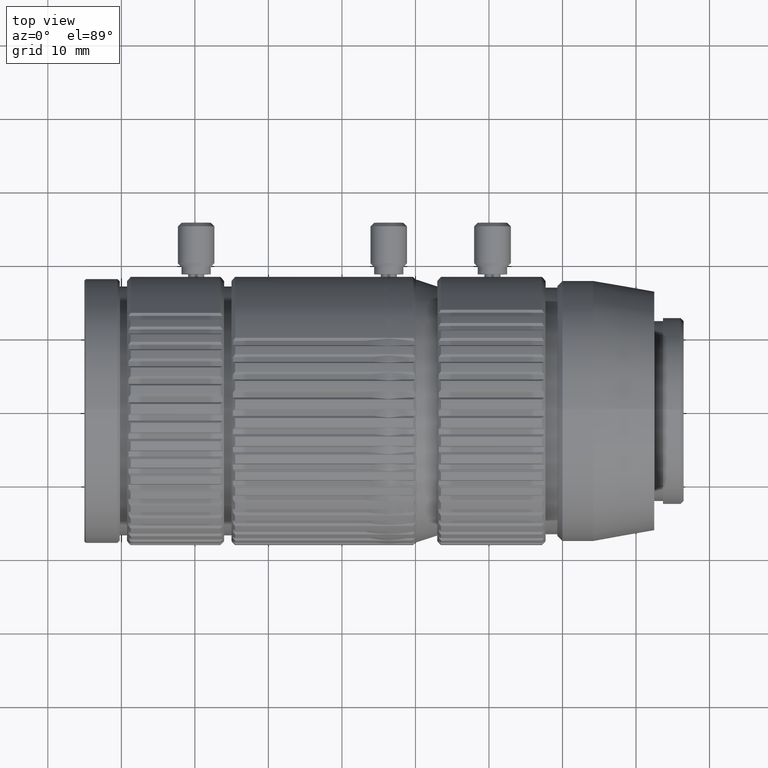
[diagram: clean part render]
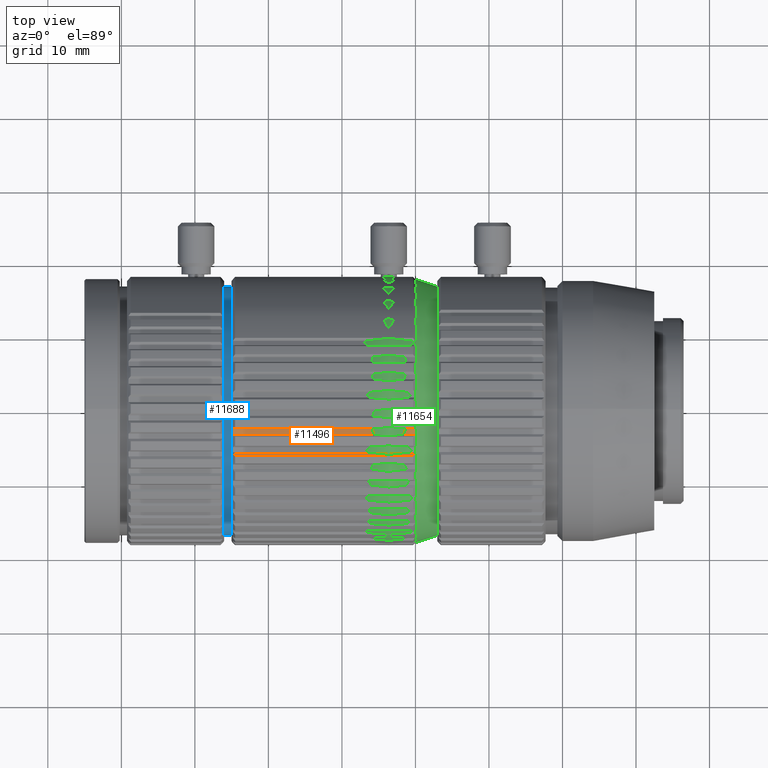
[diagram: same view with three faces highlighted in distinct colors, each labeled with its STEP entity id]
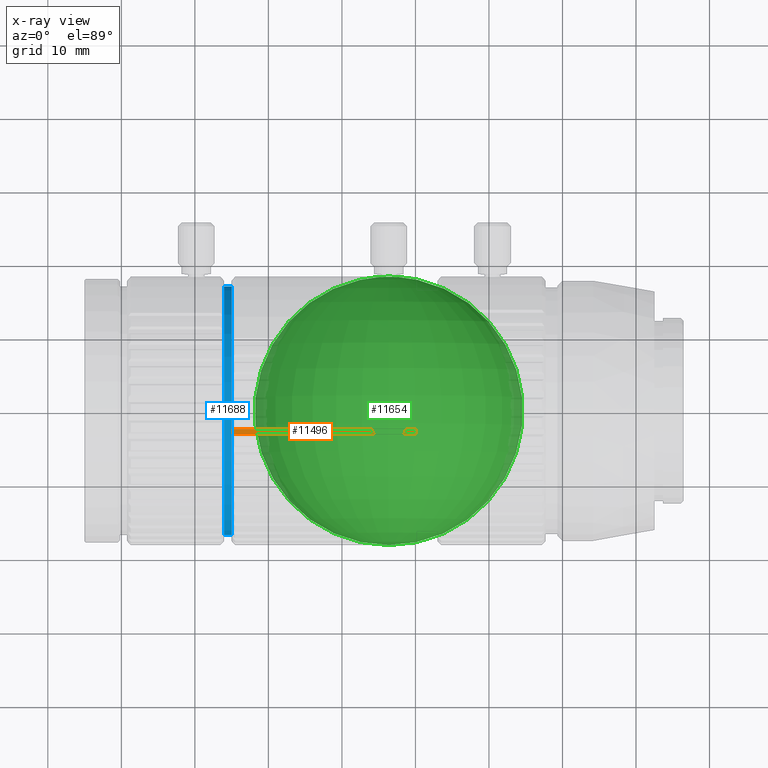
[diagram: x-ray of the same camera — body ghosted, the three highlighted faces saturated]
A machine part, top view with three faces highlighted in distinct colors.
The next image is the same camera in x-ray (body ghosted, the three faces saturated) — at least one of them is partly hidden behind the body in this view.
Their STEP definitions:

[orange] entity #11496 — the highlighted planar face has unit normal (0, 0.1738, -0.9848).
#599=LINE('',#17348,#1003);
#602=LINE('',#17367,#1006);
#1003=VECTOR('',#14018,1000.);
#1006=VECTOR('',#14025,1000.);
#1855=ORIENTED_EDGE('',*,*,#4324,.F.);
#1856=ORIENTED_EDGE('',*,*,#4325,.T.);
#1857=ORIENTED_EDGE('',*,*,#4318,.T.);
#1858=ORIENTED_EDGE('',*,*,#4326,.T.);
#4318=EDGE_CURVE('',#5499,#5498,#599,.T.);
#4324=EDGE_CURVE('',#5504,#5501,#602,.T.);
#4325=EDGE_CURVE('',#5504,#5499,#6160,.T.);
#4326=EDGE_CURVE('',#5498,#5501,#6161,.T.);
#5498=VERTEX_POINT('',#17347);
#5499=VERTEX_POINT('',#17349);
#5501=VERTEX_POINT('',#17358);
#5504=VERTEX_POINT('',#17366);
#6160=CIRCLE('',#12197,17.9528241482428);
#6161=CIRCLE('',#12198,17.9528241480452);
#6847=EDGE_LOOP('',(#1855,#1856,#1857,#1858));
#7385=FACE_BOUND('',#6847,.T.);
#7868=PLANE('',#12196);
#11496=ADVANCED_FACE('',(#7385),#7868,.F.);
#12196=AXIS2_PLACEMENT_3D('',#17368,#14026,#14027);
#12197=AXIS2_PLACEMENT_3D('',#17369,#14028,#14029);
#12198=AXIS2_PLACEMENT_3D('',#17370,#14030,#14031);
#14018=DIRECTION('',(-1.,0.,0.));
#14025=DIRECTION('',(-1.,0.,0.));
#14026=DIRECTION('',(0.,0.173775799336117,-0.984785241342037));
#14027=DIRECTION('',(0.,0.984785241342037,0.173775799336117));
#14028=DIRECTION('',(1.15648912371385E-11,-0.173775799336124,0.984785241342036));
#14029=DIRECTION('',(0.999814372025201,-0.0189739646518459,-0.00334815729063878));
#14030=DIRECTION('',(-1.46790637233479E-11,-0.173775799336123,0.984785241342036));
#14031=DIRECTION('',(-0.999805954677171,0.0193993442384117,0.00342322000313109));
#17347=CARTESIAN_POINT('',(-74.8248104723057,-2.77060349989194,17.736092064082));
#17348=CARTESIAN_POINT('',(25.110901009205,-2.77060349989194,17.736092064082));
#17349=CARTESIAN_POINT('',(-50.0271895276944,-2.77060349989194,17.736092064082));
#17358=CARTESIAN_POINT('',(-74.8249615868562,-3.45951276635951,17.6145267182332));
#17366=CARTESIAN_POINT('',(-50.0270384131439,-3.45951276635951,17.6145267182332));
#17367=CARTESIAN_POINT('',(25.110901009205,-3.45965956718344,17.6145008136709));
#17368=CARTESIAN_POINT('',(25.110901009205,-3.45936596553558,17.6145526227954));
#17369=CARTESIAN_POINT('',(-67.9765300143797,-3.1188765155817,17.6746355972907));
#17370=CARTESIAN_POINT('',(-56.875469985818,-3.11887651559154,17.6746355973457));

[blue] entity #11688 — the highlighted cylindrical surface (bore or boss wall) has radius 16.95 mm, axis along (-1, 0, 0).
#275=CYLINDRICAL_SURFACE('',#12826,16.95);
#3047=ORIENTED_EDGE('',*,*,#4975,.F.);
#3048=ORIENTED_EDGE('',*,*,#4974,.T.);
#4974=EDGE_CURVE('',#5925,#5925,#6597,.T.);
#4975=EDGE_CURVE('',#5926,#5926,#6598,.T.);
#5925=VERTEX_POINT('',#18736);
#5926=VERTEX_POINT('',#18739);
#6597=CIRCLE('',#12825,16.95);
#6598=CIRCLE('',#12827,16.95);
#7085=EDGE_LOOP('',(#3047));
#7086=EDGE_LOOP('',(#3048));
#7624=FACE_BOUND('',#7085,.T.);
#7625=FACE_BOUND('',#7086,.T.);
#11688=ADVANCED_FACE('',(#7624,#7625),#275,.T.);
#12825=AXIS2_PLACEMENT_3D('',#18735,#15464,#15465);
#12826=AXIS2_PLACEMENT_3D('',#18737,#15466,#15467);
#12827=AXIS2_PLACEMENT_3D('',#18738,#15468,#15469);
#15464=DIRECTION('',(-1.,0.,0.));
#15465=DIRECTION('',(0.,0.,1.));
#15466=DIRECTION('',(-1.,0.,0.));
#15467=DIRECTION('',(0.,0.,1.));
#15468=DIRECTION('',(-1.,0.,0.));
#15469=DIRECTION('',(0.,0.,1.));
#18735=CARTESIAN_POINT('',(-75.026,0.,0.));
#18736=CARTESIAN_POINT('',(-75.026,0.,16.95));
#18737=CARTESIAN_POINT('',(-60.,0.,0.));
#18738=CARTESIAN_POINT('',(-76.0260000000001,0.,0.));
#18739=CARTESIAN_POINT('',(-76.0260000000001,0.,16.95));

[green] entity #11654 — the highlighted toroidal blend (fillet) surface has major radius 0.0029 mm and minor (blend) radius 18.25 mm.
#20=VERTEX_LOOP('',#5894);
#21=DEGENERATE_TOROIDAL_SURFACE('',#12627,0.00286084450842342,18.25,.T.);
#183=B_SPLINE_CURVE_WITH_KNOTS('',3,(#18475,#18476,#18477,#18478),
 .UNSPECIFIED.,.F.,.F.,(4,4),(3.92481186439753E-17,0.00206246665742315),
 .UNSPECIFIED.);
#184=B_SPLINE_CURVE_WITH_KNOTS('',3,(#18483,#18484,#18485,#18486),
 .UNSPECIFIED.,.F.,.F.,(4,4),(2.42861286636753E-17,0.00206246665742316),
 .UNSPECIFIED.);
#2444=ORIENTED_EDGE('',*,*,#4804,.F.);
#2445=ORIENTED_EDGE('',*,*,#4805,.T.);
#2446=ORIENTED_EDGE('',*,*,#4806,.F.);
#2447=ORIENTED_EDGE('',*,*,#4807,.T.);
#4804=EDGE_CURVE('',#5890,#5891,#183,.T.);
#4805=EDGE_CURVE('',#5890,#5892,#6433,.T.);
#4806=EDGE_CURVE('',#5893,#5892,#184,.T.);
#4807=EDGE_CURVE('',#5893,#5891,#6434,.T.);
#5890=VERTEX_POINT('',#18479);
#5891=VERTEX_POINT('',#18480);
#5892=VERTEX_POINT('',#18482);
#5893=VERTEX_POINT('',#18487);
#5894=VERTEX_POINT('',#18489);
#6433=CIRCLE('',#12628,1.09999999999996);
#6434=CIRCLE('',#12629,1.09999999999996);
#7021=EDGE_LOOP('',(#2444,#2445,#2446,#2447));
#7559=FACE_BOUND('',#7021,.T.);
#7560=FACE_BOUND('',#20,.T.);
#11654=ADVANCED_FACE('',(#7559,#7560),#21,.F.);
#12627=AXIS2_PLACEMENT_3D('',#18474,#15068,#15069);
#12628=AXIS2_PLACEMENT_3D('',#18481,#15070,#15071);
#12629=AXIS2_PLACEMENT_3D('',#18488,#15072,#15073);
#15068=DIRECTION('',(-6.12303176911189E-17,-1.,-6.12303176911189E-17));
#15069=DIRECTION('',(0.,6.12303176911189E-17,-1.));
#15070=DIRECTION('',(-6.12303176911189E-17,-1.,-6.12303176911189E-17));
#15071=DIRECTION('',(0.,6.12303176911189E-17,-1.));
#15072=DIRECTION('',(-6.12303176911189E-17,-1.,-6.12303176911189E-17));
#15073=DIRECTION('',(0.,6.12303176911189E-17,-1.));
#18474=CARTESIAN_POINT('',(-53.626,0.00387350865204555,3.67400540871553E-15));
#18475=CARTESIAN_POINT('',(-53.2420364245292,18.2208651832806,1.03081131770688));
#18476=CARTESIAN_POINT('',(-53.2464503504261,18.2597113173889,0.344157843574441));
#18477=CARTESIAN_POINT('',(-53.2464503519724,18.2597113309978,-0.344157603018437));
#18478=CARTESIAN_POINT('',(-53.2420364245293,18.2208651832807,-1.03081131770499));
#18479=CARTESIAN_POINT('',(-53.2420364245306,18.2208651832806,1.03081131770693));
#18480=CARTESIAN_POINT('',(-53.2420364245303,18.2208651832806,-1.03081131770679));
#18481=CARTESIAN_POINT('',(-53.626,18.2208651832806,4.78948842524645E-15));
#18482=CARTESIAN_POINT('',(-54.0099635754697,18.2208651832806,1.03081131770681));
#18483=CARTESIAN_POINT('',(-54.0099635754708,18.2208651832806,-1.03081131770687));
#18484=CARTESIAN_POINT('',(-54.005549649574,18.2597113173889,-0.344157843574422));
#18485=CARTESIAN_POINT('',(-54.0055496480276,18.2597113309978,0.344157603018477));
#18486=CARTESIAN_POINT('',(-54.0099635754708,18.2208651832807,1.03081131770504));
#18487=CARTESIAN_POINT('',(-54.0099635754694,18.2208651832806,-1.0308113177069));
#18488=CARTESIAN_POINT('',(-53.626,18.2208651832806,4.78948842524645E-15));
#18489=CARTESIAN_POINT('',(-53.626,18.2538732844211,5.02544647605976E-15));